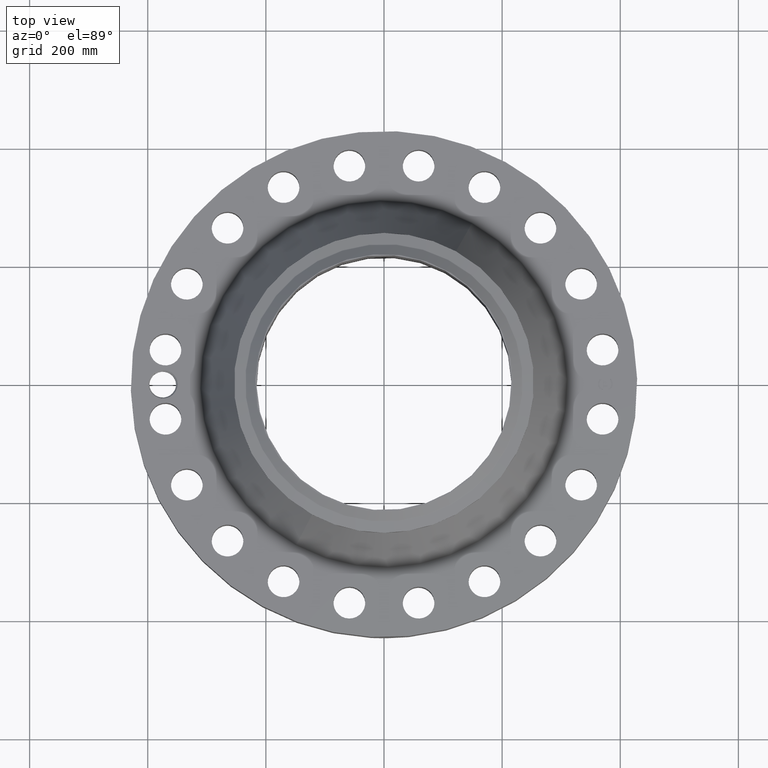
[diagram: clean part render]
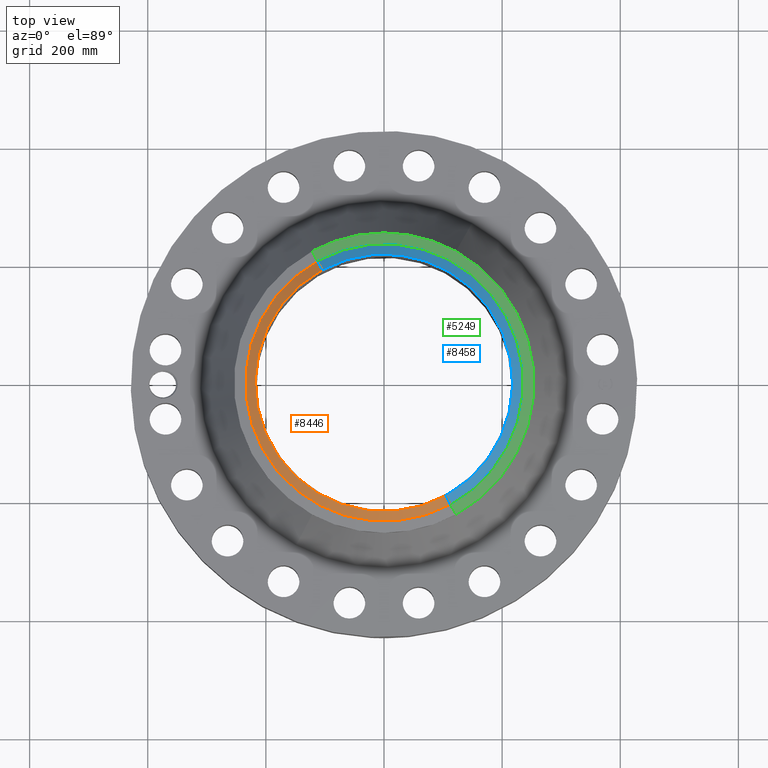
[diagram: same view with three faces highlighted in distinct colors, each labeled with its STEP entity id]
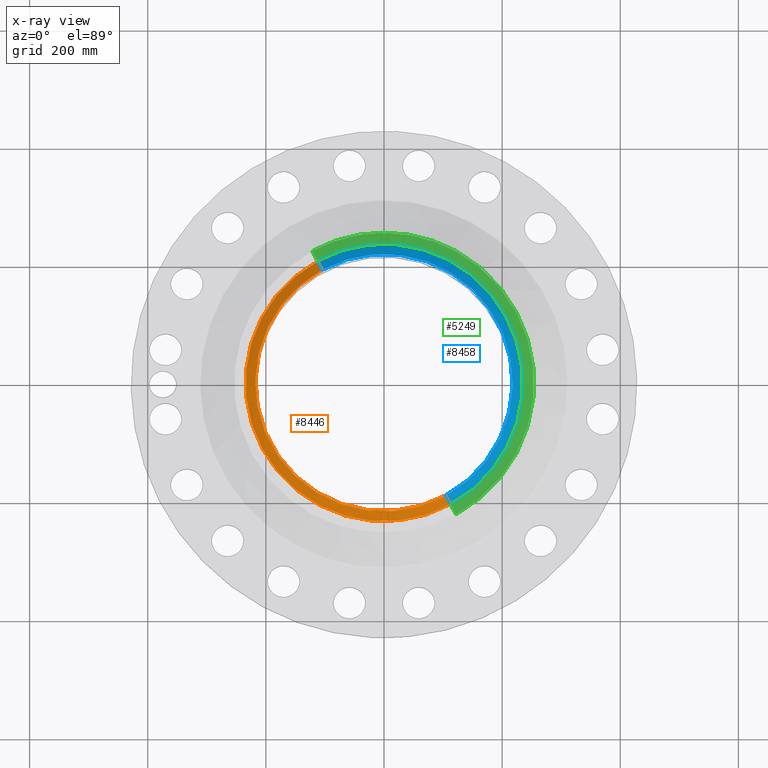
[diagram: x-ray of the same camera — body ghosted, the three highlighted faces saturated]
A machine part, top view with three faces highlighted in distinct colors.
The next image is the same camera in x-ray (body ghosted, the three faces saturated) — at least one of them is partly hidden behind the body in this view.
Their STEP definitions:

[orange] entity #8446 — the highlighted conical surface has half-angle 52.5 deg.
#4865=AXIS2_PLACEMENT_3D('Circle Axis2P3D',#4863,#4864,$) ;
#8419=AXIS2_PLACEMENT_3D('Cone Axis2P3D',#8416,#8417,#8418) ;
#8430=AXIS2_PLACEMENT_3D('Circle Axis2P3D',#8428,#8429,$) ;
#4858=CARTESIAN_POINT('Vertex',(4.11286712056,-7.52855276522,10.)) ;
#4860=CARTESIAN_POINT('Vertex',(-4.11286712056,7.52855276522,10.)) ;
#4863=CARTESIAN_POINT('Axis2P3D Location',(0.,0.,10.)) ;
#8416=CARTESIAN_POINT('Axis2P3D Location',(0.,0.,10.)) ;
#8421=CARTESIAN_POINT('Line Origine',(-4.26780842311,7.81217091713,9.7520143726)) ;
#8425=CARTESIAN_POINT('Vertex',(-4.42274972566,8.09578906903,9.50402874517)) ;
#8428=CARTESIAN_POINT('Axis2P3D Location',(0.,0.,9.50402874517)) ;
#8432=CARTESIAN_POINT('Vertex',(4.42274972566,-8.09578906903,9.50402874517)) ;
#8435=CARTESIAN_POINT('Line Origine',(4.26780842311,-7.81217091713,9.7520143726)) ;
#4864=DIRECTION('Axis2P3D Direction',(0.,0.,-0.0393700787402)) ;
#8417=DIRECTION('Axis2P3D Direction',(-0.,-0.,-0.0393700787402)) ;
#8418=DIRECTION('Axis2P3D XDirection',(-0.0188750212049,0.0345504945626,0.)) ;
#8422=DIRECTION('Vector Direction',(-0.014974561121,0.02741075027,-0.023966985394)) ;
#8429=DIRECTION('Axis2P3D Direction',(0.,0.,-0.0393700787402)) ;
#8436=DIRECTION('Vector Direction',(0.014974561121,-0.02741075027,-0.023966985394)) ;
#8423=VECTOR('Line Direction',#8422,0.0393700787402) ;
#8437=VECTOR('Line Direction',#8436,0.0393700787402) ;
#8441=ORIENTED_EDGE('',*,*,#4867,.F.) ;
#8442=ORIENTED_EDGE('',*,*,#8427,.T.) ;
#8443=ORIENTED_EDGE('',*,*,#8434,.T.) ;
#8444=ORIENTED_EDGE('',*,*,#8439,.F.) ;
#8446=ADVANCED_FACE('PartBody',(#8445),#8420,.T.) ;
#4866=CIRCLE('generated circle',#4865,8.57874015751) ;
#8431=CIRCLE('generated circle',#8430,9.22510248106) ;
#8420=CONICAL_SURFACE('Cone',#8419,8.57874015751,0.916297857297) ;
#4867=EDGE_CURVE('',#4861,#4859,#4866,.F.) ;
#8427=EDGE_CURVE('',#4861,#8426,#8424,.T.) ;
#8434=EDGE_CURVE('',#8426,#8433,#8431,.F.) ;
#8439=EDGE_CURVE('',#4859,#8433,#8438,.T.) ;
#8440=EDGE_LOOP('',(#8441,#8442,#8443,#8444)) ;
#8445=FACE_OUTER_BOUND('',#8440,.T.) ;
#8424=LINE('Line',#8421,#8423) ;
#8438=LINE('Line',#8435,#8437) ;
#4859=VERTEX_POINT('',#4858) ;
#4861=VERTEX_POINT('',#4860) ;
#8426=VERTEX_POINT('',#8425) ;
#8433=VERTEX_POINT('',#8432) ;

[blue] entity #8458 — the highlighted conical surface has half-angle 52.5 deg.
#4856=AXIS2_PLACEMENT_3D('Circle Axis2P3D',#4854,#4855,$) ;
#8419=AXIS2_PLACEMENT_3D('Cone Axis2P3D',#8416,#8417,#8418) ;
#8449=AXIS2_PLACEMENT_3D('Circle Axis2P3D',#8447,#8448,$) ;
#4854=CARTESIAN_POINT('Axis2P3D Location',(0.,0.,10.)) ;
#4858=CARTESIAN_POINT('Vertex',(4.11286712056,-7.52855276522,10.)) ;
#4860=CARTESIAN_POINT('Vertex',(-4.11286712056,7.52855276522,10.)) ;
#8416=CARTESIAN_POINT('Axis2P3D Location',(0.,0.,10.)) ;
#8421=CARTESIAN_POINT('Line Origine',(-4.26780842311,7.81217091713,9.7520143726)) ;
#8425=CARTESIAN_POINT('Vertex',(-4.42274972566,8.09578906903,9.50402874517)) ;
#8432=CARTESIAN_POINT('Vertex',(4.42274972566,-8.09578906903,9.50402874517)) ;
#8435=CARTESIAN_POINT('Line Origine',(4.26780842311,-7.81217091713,9.7520143726)) ;
#8447=CARTESIAN_POINT('Axis2P3D Location',(0.,0.,9.50402874517)) ;
#4855=DIRECTION('Axis2P3D Direction',(0.,0.,-0.0393700787402)) ;
#8417=DIRECTION('Axis2P3D Direction',(-0.,-0.,-0.0393700787402)) ;
#8418=DIRECTION('Axis2P3D XDirection',(-0.0188750212049,0.0345504945626,0.)) ;
#8422=DIRECTION('Vector Direction',(-0.014974561121,0.02741075027,-0.023966985394)) ;
#8436=DIRECTION('Vector Direction',(0.014974561121,-0.02741075027,-0.023966985394)) ;
#8448=DIRECTION('Axis2P3D Direction',(0.,0.,-0.0393700787402)) ;
#8423=VECTOR('Line Direction',#8422,0.0393700787402) ;
#8437=VECTOR('Line Direction',#8436,0.0393700787402) ;
#8453=ORIENTED_EDGE('',*,*,#4862,.F.) ;
#8454=ORIENTED_EDGE('',*,*,#8439,.T.) ;
#8455=ORIENTED_EDGE('',*,*,#8451,.T.) ;
#8456=ORIENTED_EDGE('',*,*,#8427,.F.) ;
#8458=ADVANCED_FACE('PartBody',(#8457),#8420,.T.) ;
#4857=CIRCLE('generated circle',#4856,8.57874015751) ;
#8450=CIRCLE('generated circle',#8449,9.22510248106) ;
#8420=CONICAL_SURFACE('Cone',#8419,8.57874015751,0.916297857297) ;
#4862=EDGE_CURVE('',#4859,#4861,#4857,.F.) ;
#8427=EDGE_CURVE('',#4861,#8426,#8424,.T.) ;
#8439=EDGE_CURVE('',#4859,#8433,#8438,.T.) ;
#8451=EDGE_CURVE('',#8433,#8426,#8450,.F.) ;
#8452=EDGE_LOOP('',(#8453,#8454,#8455,#8456)) ;
#8457=FACE_OUTER_BOUND('',#8452,.T.) ;
#8424=LINE('Line',#8421,#8423) ;
#8438=LINE('Line',#8435,#8437) ;
#4859=VERTEX_POINT('',#4858) ;
#4861=VERTEX_POINT('',#4860) ;
#8426=VERTEX_POINT('',#8425) ;
#8433=VERTEX_POINT('',#8432) ;

[green] entity #5249 — the highlighted conical surface has half-angle 80 deg.
#4043=AXIS2_PLACEMENT_3D('Circle Axis2P3D',#4041,#4042,$) ;
#4070=AXIS2_PLACEMENT_3D('Circle Axis2P3D',#4068,#4069,$) ;
#5221=AXIS2_PLACEMENT_3D('Cone Axis2P3D',#5218,#5219,#5220) ;
#5232=AXIS2_PLACEMENT_3D('Circle Axis2P3D',#5230,#5231,$) ;
#4038=CARTESIAN_POINT('Vertex',(4.79425538606,8.77582561894,9.35384235724)) ;
#4041=CARTESIAN_POINT('Axis2P3D Location',(0.,0.,9.35384235724)) ;
#4045=CARTESIAN_POINT('Vertex',(4.79425538606,-8.77582561894,9.35384235724)) ;
#4065=CARTESIAN_POINT('Vertex',(-4.79425538606,8.77582561894,9.35384235724)) ;
#4068=CARTESIAN_POINT('Axis2P3D Location',(0.,0.,9.35384235724)) ;
#5218=CARTESIAN_POINT('Axis2P3D Location',(0.,0.,9.48141601926)) ;
#5223=CARTESIAN_POINT('Line Origine',(-4.62082171363,8.45835741102,9.41762918825)) ;
#5227=CARTESIAN_POINT('Vertex',(-4.4473880412,8.14088920311,9.48141601926)) ;
#5230=CARTESIAN_POINT('Axis2P3D Location',(0.,0.,9.48141601926)) ;
#5234=CARTESIAN_POINT('Vertex',(4.4473880412,-8.14088920311,9.48141601926)) ;
#5237=CARTESIAN_POINT('Line Origine',(4.62082171363,-8.45835741102,9.41762918825)) ;
#4042=DIRECTION('Axis2P3D Direction',(0.,0.,-0.0393700787402)) ;
#4069=DIRECTION('Axis2P3D Direction',(0.,0.,-0.0393700787402)) ;
#5219=DIRECTION('Axis2P3D Direction',(-0.,-0.,-0.0393700787402)) ;
#5220=DIRECTION('Axis2P3D XDirection',(0.0188750212049,-0.0345504945626,0.)) ;
#5224=DIRECTION('Vector Direction',(-0.0185882672208,0.0340255949157,-0.00683654242783)) ;
#5231=DIRECTION('Axis2P3D Direction',(0.,0.,-0.0393700787402)) ;
#5238=DIRECTION('Vector Direction',(0.0185882672208,-0.0340255949157,-0.00683654242783)) ;
#5225=VECTOR('Line Direction',#5224,0.0393700787402) ;
#5239=VECTOR('Line Direction',#5238,0.0393700787402) ;
#5243=ORIENTED_EDGE('',*,*,#5229,.F.) ;
#5244=ORIENTED_EDGE('',*,*,#5236,.F.) ;
#5245=ORIENTED_EDGE('',*,*,#5241,.T.) ;
#5246=ORIENTED_EDGE('',*,*,#4047,.T.) ;
#5247=ORIENTED_EDGE('',*,*,#4072,.F.) ;
#5249=ADVANCED_FACE('PartBody',(#5248),#5222,.T.) ;
#4044=CIRCLE('generated circle',#4043,10.) ;
#4071=CIRCLE('generated circle',#4070,10.) ;
#5233=CIRCLE('generated circle',#5232,9.27649380996) ;
#5222=CONICAL_SURFACE('Cone',#5221,9.27649380996,1.3962634016) ;
#4047=EDGE_CURVE('',#4046,#4039,#4044,.F.) ;
#4072=EDGE_CURVE('',#4066,#4039,#4071,.T.) ;
#5229=EDGE_CURVE('',#5228,#4066,#5226,.T.) ;
#5236=EDGE_CURVE('',#5235,#5228,#5233,.F.) ;
#5241=EDGE_CURVE('',#5235,#4046,#5240,.T.) ;
#5242=EDGE_LOOP('',(#5243,#5244,#5245,#5246,#5247)) ;
#5248=FACE_OUTER_BOUND('',#5242,.T.) ;
#5226=LINE('Line',#5223,#5225) ;
#5240=LINE('Line',#5237,#5239) ;
#4039=VERTEX_POINT('',#4038) ;
#4046=VERTEX_POINT('',#4045) ;
#4066=VERTEX_POINT('',#4065) ;
#5228=VERTEX_POINT('',#5227) ;
#5235=VERTEX_POINT('',#5234) ;